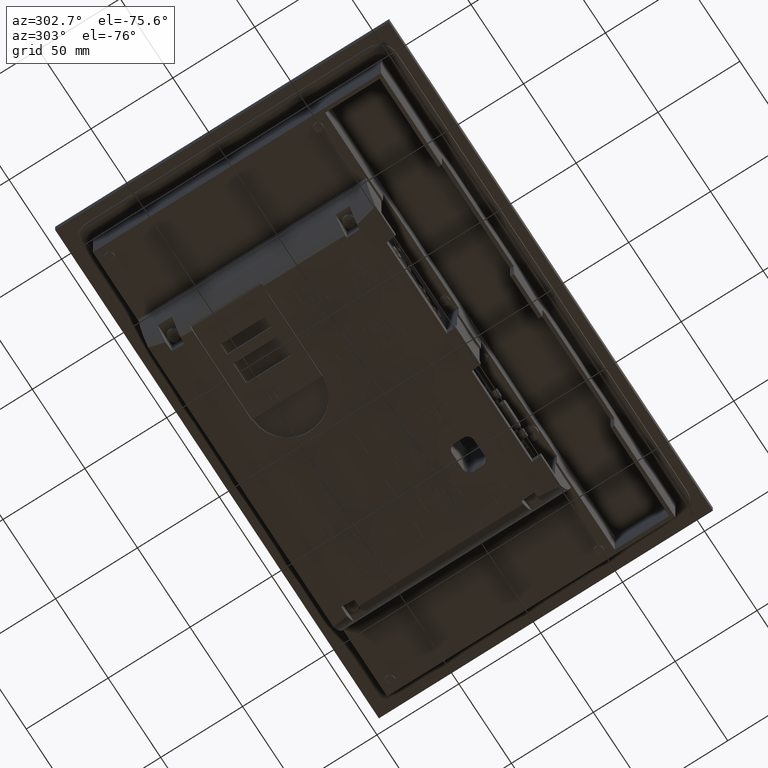
[diagram: clean part render]
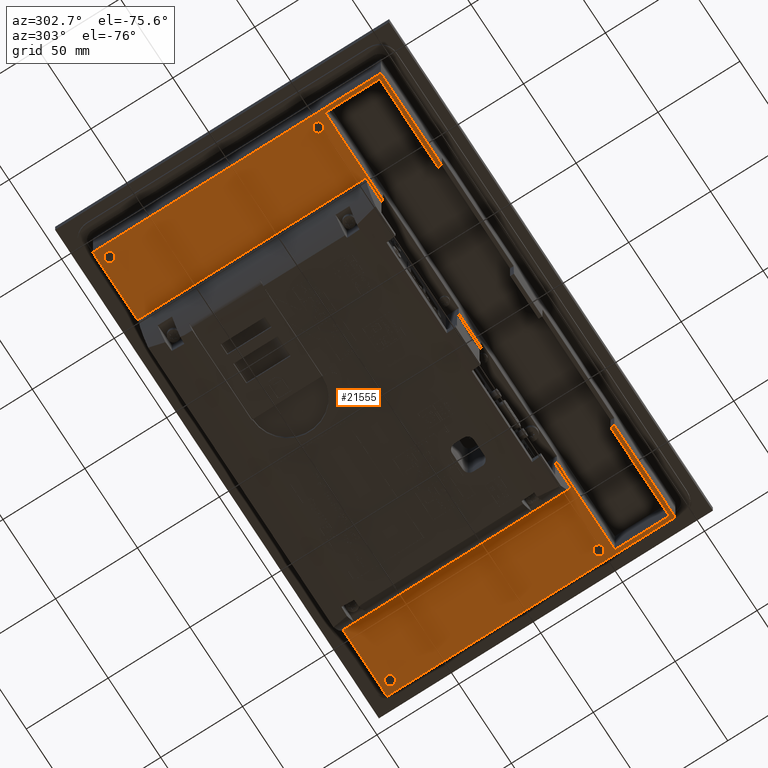
[diagram: same view with one face highlighted and labeled with its STEP entity id]
A machine part, auxiliary view. The second image highlights one B-rep face of the part: STEP entity #21555.
In plain terms, the highlighted planar face has unit normal (0, 0, 1).
Its self-contained STEP definition (entity closure, byte-faithful):
#4762=LINE('',#83754,#11532);
#4782=LINE('',#83809,#11552);
#4844=LINE('',#84004,#11614);
#4857=LINE('',#84032,#11627);
#4878=LINE('',#84091,#11648);
#4881=LINE('',#84096,#11651);
#4885=LINE('',#84104,#11655);
#4886=LINE('',#84105,#11656);
#4887=LINE('',#84106,#11657);
#4888=LINE('',#84108,#11658);
#4889=LINE('',#84110,#11659);
#4890=LINE('',#84112,#11660);
#4891=LINE('',#84114,#11661);
#4892=LINE('',#84116,#11662);
#4893=LINE('',#84118,#11663);
#4894=LINE('',#84120,#11664);
#4895=LINE('',#84122,#11665);
#4896=LINE('',#84124,#11666);
#4897=LINE('',#84126,#11667);
#4898=LINE('',#84128,#11668);
#4899=LINE('',#84130,#11669);
#4900=LINE('',#84132,#11670);
#4901=LINE('',#84134,#11671);
#4902=LINE('',#84135,#11672);
#11532=VECTOR('',#67897,1.);
#11552=VECTOR('',#67933,1.);
#11614=VECTOR('',#68059,1.);
#11627=VECTOR('',#68078,1.);
#11648=VECTOR('',#68129,1.);
#11651=VECTOR('',#68134,1.);
#11655=VECTOR('',#68142,1.);
#11656=VECTOR('',#68143,1.);
#11657=VECTOR('',#68144,1.);
#11658=VECTOR('',#68145,1.);
#11659=VECTOR('',#68146,1.);
#11660=VECTOR('',#68147,1.);
#11661=VECTOR('',#68148,1.);
#11662=VECTOR('',#68149,1.);
#11663=VECTOR('',#68150,1.);
#11664=VECTOR('',#68151,1.);
#11665=VECTOR('',#68152,1.);
#11666=VECTOR('',#68153,1.);
#11667=VECTOR('',#68154,1.);
#11668=VECTOR('',#68155,1.);
#11669=VECTOR('',#68156,1.);
#11670=VECTOR('',#68157,1.);
#11671=VECTOR('',#68158,1.);
#11672=VECTOR('',#68159,1.);
#18188=FACE_OUTER_BOUND('',#29644,.T.);
#21555=ADVANCED_FACE('',(#18188),#24910,.F.);
#24910=PLANE('',#63216);
#29644=EDGE_LOOP('',(#35025,#35026,#35027,#35028,#35029,#35030,#35031,#35032,
#35033,#35034,#35035,#35036,#35037,#35038,#35039,#35040,#35041,#35042,#35043,
#35044,#35045,#35046,#35047,#35048));
#35025=ORIENTED_EDGE('',*,*,#55490,.T.);
#35026=ORIENTED_EDGE('',*,*,#55441,.T.);
#35027=ORIENTED_EDGE('',*,*,#55491,.F.);
#35028=ORIENTED_EDGE('',*,*,#55321,.F.);
#35029=ORIENTED_EDGE('',*,*,#55492,.T.);
#35030=ORIENTED_EDGE('',*,*,#55493,.F.);
#35031=ORIENTED_EDGE('',*,*,#55494,.F.);
#35032=ORIENTED_EDGE('',*,*,#55495,.F.);
#35033=ORIENTED_EDGE('',*,*,#55496,.T.);
#35034=ORIENTED_EDGE('',*,*,#55497,.F.);
#35035=ORIENTED_EDGE('',*,*,#55498,.F.);
#35036=ORIENTED_EDGE('',*,*,#55499,.F.);
#35037=ORIENTED_EDGE('',*,*,#55500,.F.);
#35038=ORIENTED_EDGE('',*,*,#55501,.F.);
#35039=ORIENTED_EDGE('',*,*,#55502,.F.);
#35040=ORIENTED_EDGE('',*,*,#55503,.F.);
#35041=ORIENTED_EDGE('',*,*,#55504,.F.);
#35042=ORIENTED_EDGE('',*,*,#55505,.F.);
#35043=ORIENTED_EDGE('',*,*,#55506,.F.);
#35044=ORIENTED_EDGE('',*,*,#55348,.F.);
#35045=ORIENTED_EDGE('',*,*,#55507,.F.);
#35046=ORIENTED_EDGE('',*,*,#55455,.T.);
#35047=ORIENTED_EDGE('',*,*,#55483,.T.);
#35048=ORIENTED_EDGE('',*,*,#55486,.T.);
#49632=VERTEX_POINT('',#83753);
#49633=VERTEX_POINT('',#83755);
#49659=VERTEX_POINT('',#83808);
#49660=VERTEX_POINT('',#83810);
#49744=VERTEX_POINT('',#84003);
#49745=VERTEX_POINT('',#84005);
#49756=VERTEX_POINT('',#84031);
#49757=VERTEX_POINT('',#84033);
#49771=VERTEX_POINT('',#84090);
#49772=VERTEX_POINT('',#84095);
#49775=VERTEX_POINT('',#84107);
#49776=VERTEX_POINT('',#84109);
#49777=VERTEX_POINT('',#84111);
#49778=VERTEX_POINT('',#84113);
#49779=VERTEX_POINT('',#84115);
#49780=VERTEX_POINT('',#84117);
#49781=VERTEX_POINT('',#84119);
#49782=VERTEX_POINT('',#84121);
#49783=VERTEX_POINT('',#84123);
#49784=VERTEX_POINT('',#84125);
#49785=VERTEX_POINT('',#84127);
#49786=VERTEX_POINT('',#84129);
#49787=VERTEX_POINT('',#84131);
#49788=VERTEX_POINT('',#84133);
#55321=EDGE_CURVE('',#49632,#49633,#4762,.T.);
#55348=EDGE_CURVE('',#49659,#49660,#4782,.T.);
#55441=EDGE_CURVE('',#49745,#49744,#4844,.T.);
#55455=EDGE_CURVE('',#49757,#49756,#4857,.T.);
#55483=EDGE_CURVE('',#49756,#49771,#4878,.T.);
#55486=EDGE_CURVE('',#49771,#49772,#4881,.T.);
#55490=EDGE_CURVE('',#49772,#49745,#4885,.T.);
#55491=EDGE_CURVE('',#49633,#49744,#4886,.T.);
#55492=EDGE_CURVE('',#49632,#49775,#4887,.T.);
#55493=EDGE_CURVE('',#49776,#49775,#4888,.T.);
#55494=EDGE_CURVE('',#49777,#49776,#4889,.T.);
#55495=EDGE_CURVE('',#49778,#49777,#4890,.T.);
#55496=EDGE_CURVE('',#49778,#49779,#4891,.T.);
#55497=EDGE_CURVE('',#49780,#49779,#4892,.T.);
#55498=EDGE_CURVE('',#49781,#49780,#4893,.T.);
#55499=EDGE_CURVE('',#49782,#49781,#4894,.T.);
#55500=EDGE_CURVE('',#49783,#49782,#4895,.T.);
#55501=EDGE_CURVE('',#49784,#49783,#4896,.T.);
#55502=EDGE_CURVE('',#49785,#49784,#4897,.T.);
#55503=EDGE_CURVE('',#49786,#49785,#4898,.T.);
#55504=EDGE_CURVE('',#49787,#49786,#4899,.T.);
#55505=EDGE_CURVE('',#49788,#49787,#4900,.T.);
#55506=EDGE_CURVE('',#49660,#49788,#4901,.T.);
#55507=EDGE_CURVE('',#49757,#49659,#4902,.T.);
#63216=AXIS2_PLACEMENT_3D('',#84136,#68160,#68161);
#67897=DIRECTION('',(-1.,0.,0.));
#67933=DIRECTION('',(-1.,0.,0.));
#68059=DIRECTION('',(1.,0.,0.));
#68078=DIRECTION('',(1.,0.,0.));
#68129=DIRECTION('',(0.,1.,0.));
#68134=DIRECTION('',(-1.,0.,0.));
#68142=DIRECTION('',(0.,-1.,0.));
#68143=DIRECTION('',(0.,-1.,0.));
#68144=DIRECTION('',(-8.64151342586593E-009,-1.,0.));
#68145=DIRECTION('',(1.,-3.5388925769991E-014,0.));
#68146=DIRECTION('',(-1.41962655608928E-012,1.,0.));
#68147=DIRECTION('',(-1.,-7.77406289843342E-011,0.));
#68148=DIRECTION('',(0.,-1.,0.));
#68149=DIRECTION('',(1.,0.,0.));
#68150=DIRECTION('',(0.,-1.,0.));
#68151=DIRECTION('',(-1.,0.,0.));
#68152=DIRECTION('',(0.,1.,0.));
#68153=DIRECTION('',(1.,0.,0.));
#68154=DIRECTION('',(0.,-1.,0.));
#68155=DIRECTION('',(-1.,-7.77406289843342E-011,0.));
#68156=DIRECTION('',(-2.27234612533028E-010,-1.,0.));
#68157=DIRECTION('',(1.,-3.5388925769991E-014,0.));
#68158=DIRECTION('',(8.64787395611278E-009,-1.,0.));
#68159=DIRECTION('',(0.,1.,0.));
#68160=DIRECTION('',(0.,0.,1.));
#68161=DIRECTION('',(1.,0.,0.));
#83753=CARTESIAN_POINT('',(-82.625024909271,-44.55,-36.));
#83754=CARTESIAN_POINT('',(-10.67153788234,-44.55,-36.));
#83755=CARTESIAN_POINT('',(-82.62846211766,-44.55,-36.));
#83808=CARTESIAN_POINT('',(82.62846211766,-43.05,-36.));
#83809=CARTESIAN_POINT('',(82.62846211766,-43.05,-36.));
#83810=CARTESIAN_POINT('',(82.6250248665145,-43.05,-36.));
#84003=CARTESIAN_POINT('',(-82.62846211766,-51.44080243935,-36.));
#84004=CARTESIAN_POINT('',(-97.36932723405,-51.44080243935,-36.));
#84005=CARTESIAN_POINT('',(-97.36932723405,-51.44080243935,-36.));
#84031=CARTESIAN_POINT('',(97.36932723405,-51.44080243935,-36.));
#84032=CARTESIAN_POINT('',(-97.36932723405,-51.44080243935,-36.));
#84033=CARTESIAN_POINT('',(82.62846211766,-51.44080243935,-36.));
#84090=CARTESIAN_POINT('',(97.36932723405,87.4907008752,-36.));
#84091=CARTESIAN_POINT('',(97.36932723405,-51.44080243935,-36.));
#84095=CARTESIAN_POINT('',(-97.36932723405,87.4907008752,-36.));
#84096=CARTESIAN_POINT('',(97.36932723405,87.4907008752,-36.));
#84104=CARTESIAN_POINT('',(-97.36932723405,87.4907008752,-36.));
#84105=CARTESIAN_POINT('',(-82.62846211766,-44.55,-36.));
#84106=CARTESIAN_POINT('',(-82.6250248794975,-44.55,-36.));
#84107=CARTESIAN_POINT('',(-82.6250249482133,-52.5018195392036,-36.));
#84108=CARTESIAN_POINT('',(-137.746716711804,-52.5018195392016,-36.));
#84109=CARTESIAN_POINT('',(-137.746716711804,-52.5018195392016,-36.));
#84110=CARTESIAN_POINT('',(-137.746716711756,-85.7390665772894,-36.));
#84111=CARTESIAN_POINT('',(-137.746716711756,-85.7390665772894,-36.));
#84112=CARTESIAN_POINT('',(137.739066555159,-85.739066555873,-36.));
#84113=CARTESIAN_POINT('',(-82.1212724675344,-85.7390665702981,-36.));
#84114=CARTESIAN_POINT('',(-82.1212724675344,-83.01459655011,-36.));
#84115=CARTESIAN_POINT('',(-82.1212724675344,-88.01459655011,-36.));
#84116=CARTESIAN_POINT('',(-140.0145965501,-88.01459655011,-36.));
#84117=CARTESIAN_POINT('',(-140.0145965501,-88.01459655011,-36.));
#84118=CARTESIAN_POINT('',(-140.0145965501,88.01459655011,-36.));
#84119=CARTESIAN_POINT('',(-140.0145965501,88.01459655011,-36.));
#84120=CARTESIAN_POINT('',(140.0145965501,88.01459655011,-36.));
#84121=CARTESIAN_POINT('',(140.0145965501,88.01459655011,-36.));
#84122=CARTESIAN_POINT('',(140.0145965501,-88.01459655011,-36.));
#84123=CARTESIAN_POINT('',(140.0145965501,-88.01459655011,-36.));
#84124=CARTESIAN_POINT('',(-140.0145965501,-88.01459655011,-36.));
#84125=CARTESIAN_POINT('',(82.1212724674696,-88.01459655011,-36.));
#84126=CARTESIAN_POINT('',(82.1212724674696,-83.01459655011,-36.));
#84127=CARTESIAN_POINT('',(82.1212724674696,-85.7390665628637,-36.));
#84128=CARTESIAN_POINT('',(137.739066555159,-85.739066555873,-36.));
#84129=CARTESIAN_POINT('',(137.739066555159,-85.739066555873,-36.));
#84130=CARTESIAN_POINT('',(137.739066562712,-52.5018195392114,-36.));
#84131=CARTESIAN_POINT('',(137.739066562712,-52.5018195392114,-36.));
#84132=CARTESIAN_POINT('',(-137.746716711804,-52.5018195392016,-36.));
#84133=CARTESIAN_POINT('',(82.6250249482527,-52.5018195392094,-36.));
#84134=CARTESIAN_POINT('',(82.6250248665145,-43.05,-36.));
#84135=CARTESIAN_POINT('',(82.62846211766,-51.44080243935,-36.));
#84136=CARTESIAN_POINT('',(-140.0145965501,-88.01459655011,-36.));